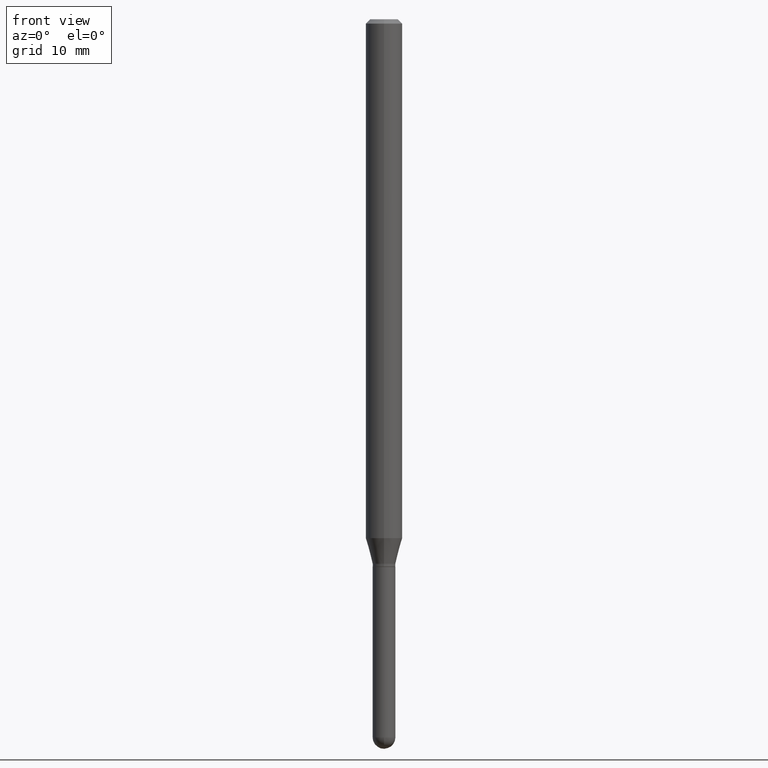
[diagram: clean part render]
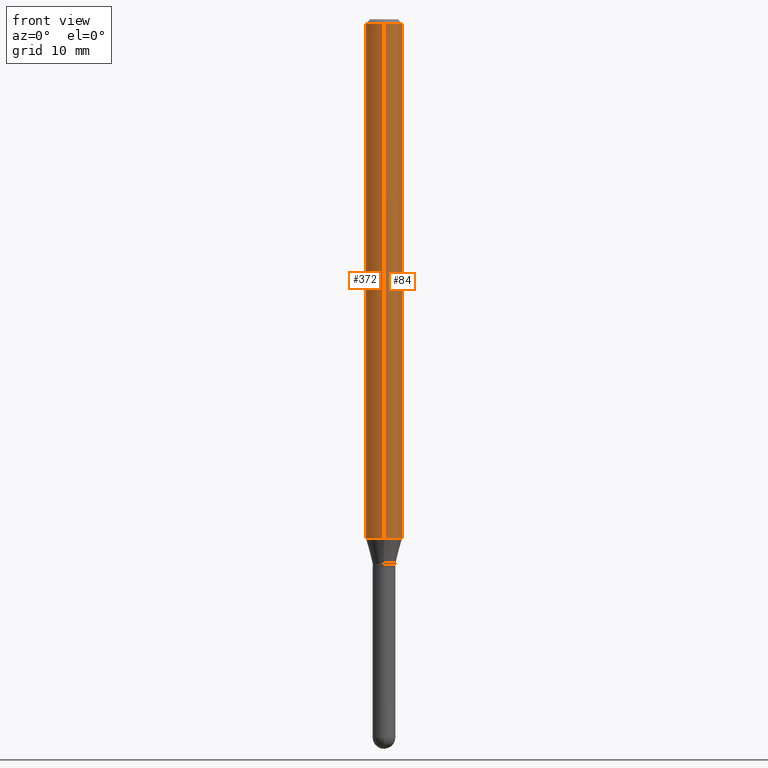
[diagram: same view with one multi-face feature highlighted, each face labeled with its STEP entity id]
A machine part, front view. The highlighted faces form ONE feature: a constant-radius fillet chain: 2 tangent blend faces with common blend radius 1.5875 mm. The faces share edges in the B-rep.
Their STEP definitions:
[1] entity #84 (Cylinder):
#6 = DIRECTION ( 'NONE',  ( -2.445445319394689421E-29, 3.491514973263850960E-15, 1.000000000000000000 ) ) ;
#14 = DIRECTION ( 'NONE',  ( -2.445445319394689421E-29, 3.491514973263850960E-15, 1.000000000000000000 ) ) ;
#52 = CARTESIAN_POINT ( 'NONE',  ( 4.348727600781349997E-29, -6.208949925133558154E-15, -1.778296806022132692 ) ) ;
#62 = CYLINDRICAL_SURFACE ( 'NONE', #493, 0.06250000000000000000 ) ;
#69 = AXIS2_PLACEMENT_3D ( 'NONE', #115, #299, #163 ) ;
#72 = LINE ( 'NONE', #80, #162 ) ;
#75 = CIRCLE ( 'NONE', #69, 0.06250000000000000000 ) ;
#76 = CARTESIAN_POINT ( 'NONE',  ( -4.364351673553483807E-16, -0.06250000000000624500, -1.778296806022132470 ) ) ;
#80 = CARTESIAN_POINT ( 'NONE',  ( -4.364351673553916201E-16, -0.06250000000000000000, 2.182196858289906850E-16 ) ) ;
#84 = ADVANCED_FACE ( 'NONE', ( #111 ), #62, .T. ) ;
#106 = VERTEX_POINT ( 'NONE', #445 ) ;
#111 = FACE_OUTER_BOUND ( 'NONE', #286, .T. ) ;
#115 = CARTESIAN_POINT ( 'NONE',  ( 3.668167979092114251E-31, -5.237272459895891490E-17, -0.01500000000000032904 ) ) ;
#137 = EDGE_CURVE ( 'NONE', #485, #156, #369, .T. ) ;
#146 = ORIENTED_EDGE ( 'NONE', *, *, #214, .T. ) ;
#156 = VERTEX_POINT ( 'NONE', #439 ) ;
#162 = VECTOR ( 'NONE', #462, 39.37007874015748143 ) ;
#163 = DIRECTION ( 'NONE',  ( -6.982962677686265922E-15, -1.000000000000000000, 3.483106191921935554E-15 ) ) ;
#175 = AXIS2_PLACEMENT_3D ( 'NONE', #52, #212, #500 ) ;
#212 = DIRECTION ( 'NONE',  ( -2.445445319394689421E-29, 3.491514973263850960E-15, 1.000000000000000000 ) ) ;
#214 = EDGE_CURVE ( 'NONE', #508, #485, #425, .T. ) ;
#226 = ORIENTED_EDGE ( 'NONE', *, *, #454, .F. ) ;
#265 = ORIENTED_EDGE ( 'NONE', *, *, #137, .T. ) ;
#286 = EDGE_LOOP ( 'NONE', ( #146, #265, #483, #226 ) ) ;
#299 = DIRECTION ( 'NONE',  ( -2.445445319394689421E-29, 3.491514973263850960E-15, 1.000000000000000000 ) ) ;
#330 = DIRECTION ( 'NONE',  ( -6.982962677686265922E-15, -1.000000000000000000, 3.491514973263850960E-15 ) ) ;
#363 = CARTESIAN_POINT ( 'NONE',  ( 4.440892098500625669E-16, 0.06250000000000000000, -2.182196858289906850E-16 ) ) ;
#369 = LINE ( 'NONE', #363, #417 ) ;
#374 = CARTESIAN_POINT ( 'NONE',  ( 0.000000000000000000, 0.000000000000000000, 0.000000000000000000 ) ) ;
#417 = VECTOR ( 'NONE', #6, 39.37007874015748143 ) ;
#425 = CIRCLE ( 'NONE', #175, 0.06250000000000000000 ) ;
#426 = CARTESIAN_POINT ( 'NONE',  ( 4.440892098501057077E-16, 0.06249999999999374806, -1.778296806022132914 ) ) ;
#439 = CARTESIAN_POINT ( 'NONE',  ( 4.440892098501062007E-16, 0.06249999999999993755, -0.01500000000000054588 ) ) ;
#445 = CARTESIAN_POINT ( 'NONE',  ( -4.364351673553912750E-16, -0.06250000000000005551, -0.01500000000000011047 ) ) ;
#454 = EDGE_CURVE ( 'NONE', #508, #106, #72, .T. ) ;
#462 = DIRECTION ( 'NONE',  ( -2.445445319394689421E-29, 3.491514973263850960E-15, 1.000000000000000000 ) ) ;
#464 = EDGE_CURVE ( 'NONE', #106, #156, #75, .T. ) ;
#483 = ORIENTED_EDGE ( 'NONE', *, *, #464, .F. ) ;
#485 = VERTEX_POINT ( 'NONE', #426 ) ;
#493 = AXIS2_PLACEMENT_3D ( 'NONE', #374, #14, #330 ) ;
#500 = DIRECTION ( 'NONE',  ( -6.982962677686265922E-15, -1.000000000000000000, 4.370956789862821150E-15 ) ) ;
#508 = VERTEX_POINT ( 'NONE', #76 ) ;
[2] entity #372 (Cylinder):
#6 = DIRECTION ( 'NONE',  ( -2.445445319394689421E-29, 3.491514973263850960E-15, 1.000000000000000000 ) ) ;
#23 = FACE_OUTER_BOUND ( 'NONE', #96, .T. ) ;
#72 = LINE ( 'NONE', #80, #162 ) ;
#76 = CARTESIAN_POINT ( 'NONE',  ( -4.364351673553483807E-16, -0.06250000000000624500, -1.778296806022132470 ) ) ;
#78 = DIRECTION ( 'NONE',  ( -2.445445319394689421E-29, 3.491514973263850960E-15, 1.000000000000000000 ) ) ;
#80 = CARTESIAN_POINT ( 'NONE',  ( -4.364351673553916201E-16, -0.06250000000000000000, 2.182196858289906850E-16 ) ) ;
#96 = EDGE_LOOP ( 'NONE', ( #427, #294, #489, #261 ) ) ;
#106 = VERTEX_POINT ( 'NONE', #445 ) ;
#107 = AXIS2_PLACEMENT_3D ( 'NONE', #196, #154, #295 ) ;
#135 = DIRECTION ( 'NONE',  ( -6.982962677686265922E-15, -1.000000000000000000, 4.370956789862821150E-15 ) ) ;
#137 = EDGE_CURVE ( 'NONE', #485, #156, #369, .T. ) ;
#154 = DIRECTION ( 'NONE',  ( -2.445445319394689421E-29, 3.491514973263850960E-15, 1.000000000000000000 ) ) ;
#156 = VERTEX_POINT ( 'NONE', #439 ) ;
#162 = VECTOR ( 'NONE', #462, 39.37007874015748143 ) ;
#183 = AXIS2_PLACEMENT_3D ( 'NONE', #383, #78, #297 ) ;
#196 = CARTESIAN_POINT ( 'NONE',  ( 0.000000000000000000, 0.000000000000000000, 0.000000000000000000 ) ) ;
#205 = CIRCLE ( 'NONE', #210, 0.06250000000000000000 ) ;
#210 = AXIS2_PLACEMENT_3D ( 'NONE', #323, #481, #135 ) ;
#261 = ORIENTED_EDGE ( 'NONE', *, *, #473, .F. ) ;
#294 = ORIENTED_EDGE ( 'NONE', *, *, #368, .T. ) ;
#295 = DIRECTION ( 'NONE',  ( -6.982962677686265922E-15, -1.000000000000000000, 3.491514973263850960E-15 ) ) ;
#297 = DIRECTION ( 'NONE',  ( -6.982962677686265922E-15, -1.000000000000000000, 3.483106191921935554E-15 ) ) ;
#298 = CYLINDRICAL_SURFACE ( 'NONE', #107, 0.06250000000000000000 ) ;
#323 = CARTESIAN_POINT ( 'NONE',  ( 4.348727600781349997E-29, -6.208949925133558154E-15, -1.778296806022132692 ) ) ;
#363 = CARTESIAN_POINT ( 'NONE',  ( 4.440892098500625669E-16, 0.06250000000000000000, -2.182196858289906850E-16 ) ) ;
#368 = EDGE_CURVE ( 'NONE', #485, #508, #205, .T. ) ;
#369 = LINE ( 'NONE', #363, #417 ) ;
#372 = ADVANCED_FACE ( 'NONE', ( #23 ), #298, .T. ) ;
#383 = CARTESIAN_POINT ( 'NONE',  ( 3.668167979092114251E-31, -5.237272459895891490E-17, -0.01500000000000032904 ) ) ;
#406 = CIRCLE ( 'NONE', #183, 0.06250000000000000000 ) ;
#417 = VECTOR ( 'NONE', #6, 39.37007874015748143 ) ;
#426 = CARTESIAN_POINT ( 'NONE',  ( 4.440892098501057077E-16, 0.06249999999999374806, -1.778296806022132914 ) ) ;
#427 = ORIENTED_EDGE ( 'NONE', *, *, #137, .F. ) ;
#439 = CARTESIAN_POINT ( 'NONE',  ( 4.440892098501062007E-16, 0.06249999999999993755, -0.01500000000000054588 ) ) ;
#445 = CARTESIAN_POINT ( 'NONE',  ( -4.364351673553912750E-16, -0.06250000000000005551, -0.01500000000000011047 ) ) ;
#454 = EDGE_CURVE ( 'NONE', #508, #106, #72, .T. ) ;
#462 = DIRECTION ( 'NONE',  ( -2.445445319394689421E-29, 3.491514973263850960E-15, 1.000000000000000000 ) ) ;
#473 = EDGE_CURVE ( 'NONE', #156, #106, #406, .T. ) ;
#481 = DIRECTION ( 'NONE',  ( -2.445445319394689421E-29, 3.491514973263850960E-15, 1.000000000000000000 ) ) ;
#485 = VERTEX_POINT ( 'NONE', #426 ) ;
#489 = ORIENTED_EDGE ( 'NONE', *, *, #454, .T. ) ;
#508 = VERTEX_POINT ( 'NONE', #76 ) ;